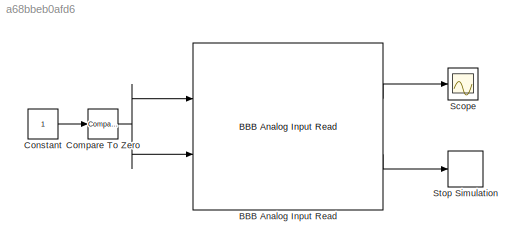
MODEL slx_a68bbeb0afd6
KIND model
BLOCK [Reference] BBB Analog Input Read  REF=BLACKlink/BBB Analog Input Read
  BBB_AINPin = P9_39 -> AIN0
  BBB_CalibrationReq = Enable: Run Init Calibration Routine
  BBB_DebugInfo = No Debug Info
  Ports = [2, 2]
  SourceBlock = BLACKlink/BBB Analog Input Read
  SourceType = BLACKlink Album - BBB_Driver_ADC_Read
BLOCK [Reference] Compare To Zero  REF=simulink/Logic and Bit
Operations/Compare
To Zero
  OutDataTypeStr = boolean
  Ports = [1, 1]
  SourceBlock = simulink/Logic and Bit\nOperations/Compare\nTo Zero
  SourceType = Compare To Zero
  ZeroCross = on
  relop = >
BLOCK [Constant] Constant
BLOCK [Scope] Scope
  DataFormat = StructureWithTime
  Floating = off
  NumInputPorts = 1
  Ports = [1]
  SampleTime = 0
  ShowLegends = off
  YMax = 1025
  YMin = 575
BLOCK [Stop] Stop Simulation
LINE BBB Analog Input Read:1 -> Scope:1
LINE BBB Analog Input Read:2 -> Stop Simulation:1
NET Compare To Zero:1 -> BBB Analog Input Read:1, BBB Analog Input Read:2
LINE Constant:1 -> Compare To Zero:1
note: NET lines group one-source signal fan-out (src -> all destinations, sorted); 1:1 wires keep LINE
